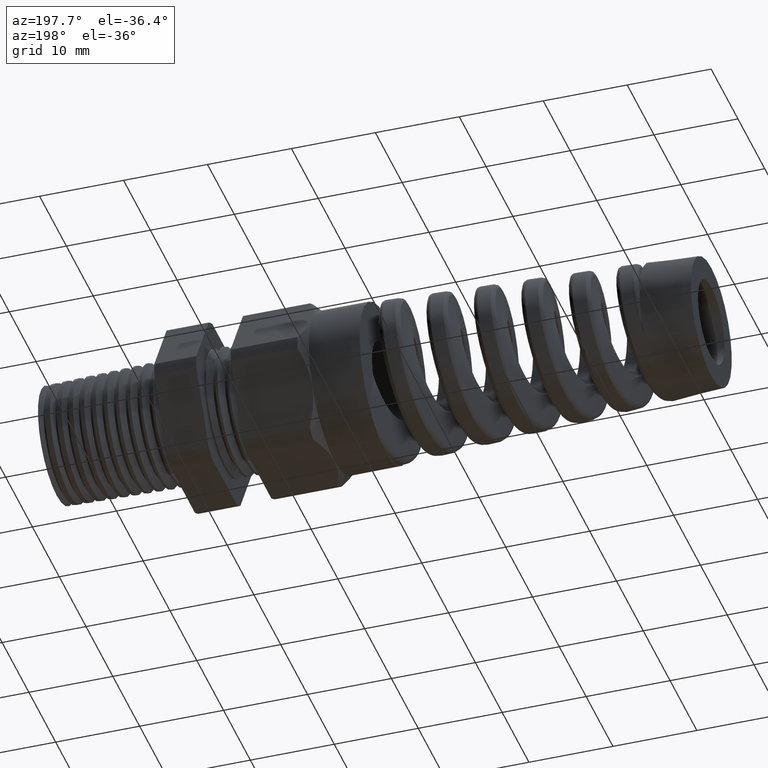
[diagram: clean part render]
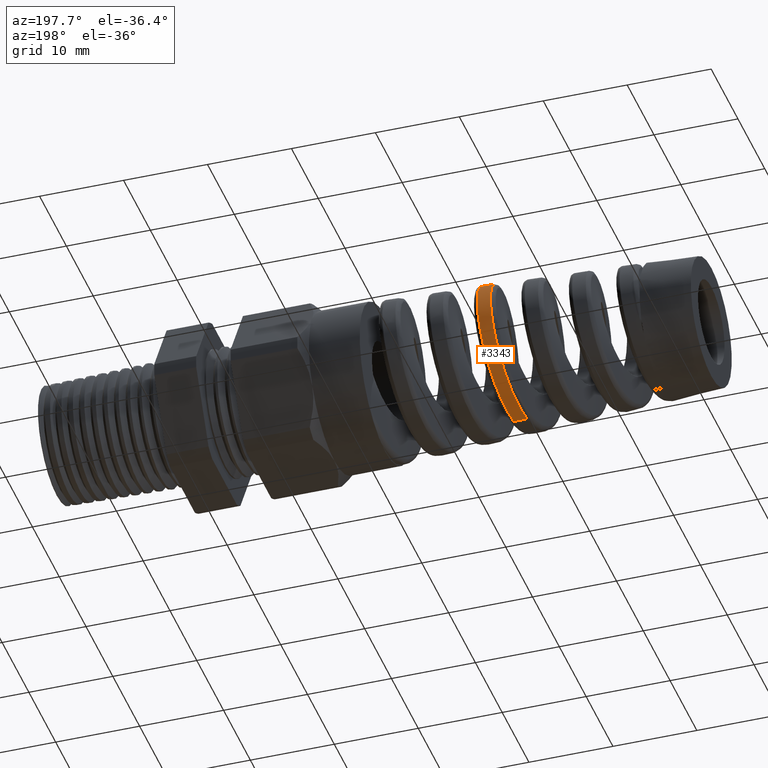
[diagram: same view with one face highlighted and labeled with its STEP entity id]
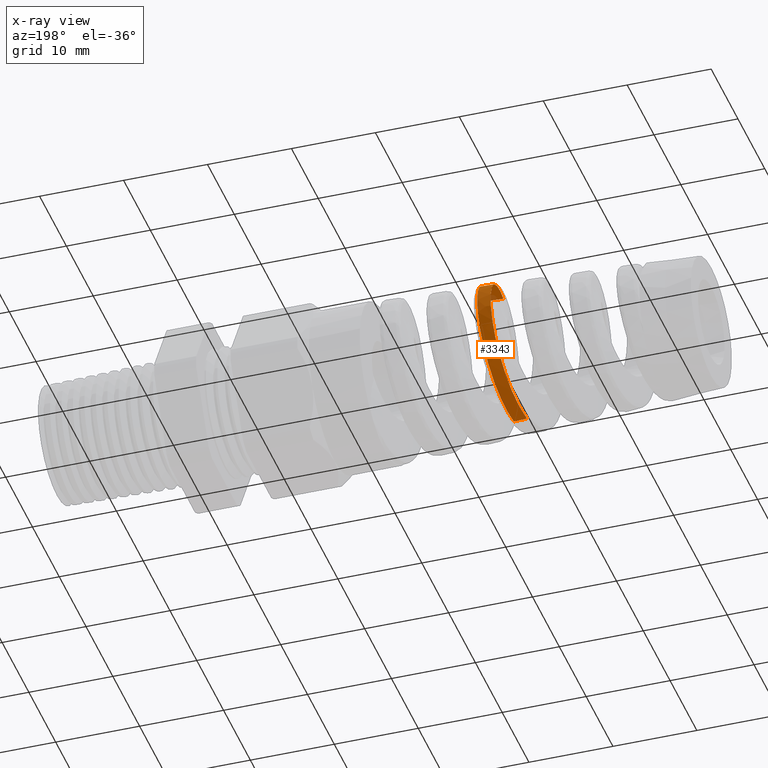
[diagram: x-ray of the same camera — body ghosted, the highlighted face saturated]
A machine part, auxiliary view. The second image highlights one B-rep face of the part: STEP entity #3343.
The next image is the same camera in x-ray: the body ghosted, the highlighted face saturated — about 1% of this face is hidden behind the body in this view.
In plain terms, the highlighted conical surface has half-angle 2.5 deg.
Its self-contained STEP definition (entity closure, byte-faithful):
#3343 = ADVANCED_FACE ( 'NONE', ( #7266 ), #7265, .T. ) ;
#3344 = EDGE_LOOP ( 'NONE', ( #3345, #3349, #3352, #3355 ) ) ;
#3345 = ORIENTED_EDGE ( 'NONE', *, *, #3346, .T. ) ;
#3346 = EDGE_CURVE ( 'NONE', #3347, #3348, #7347, .T. ) ;
#3347 = VERTEX_POINT ( 'NONE', #7348 ) ;
#3348 = VERTEX_POINT ( 'NONE', #7346 ) ;
#3349 = ORIENTED_EDGE ( 'NONE', *, *, #3350, .T. ) ;
#3350 = EDGE_CURVE ( 'NONE', #3348, #3351, #7377, .T. ) ;
#3351 = VERTEX_POINT ( 'NONE', #7373 ) ;
#3352 = ORIENTED_EDGE ( 'NONE', *, *, #3353, .T. ) ;
#3353 = EDGE_CURVE ( 'NONE', #3351, #3354, #7371, .T. ) ;
#3354 = VERTEX_POINT ( 'NONE', #7372 ) ;
#3355 = ORIENTED_EDGE ( 'NONE', *, *, #3356, .F. ) ;
#3356 = EDGE_CURVE ( 'NONE', #3347, #3354, #7397, .T. ) ;
#7261 = DIRECTION ( 'NONE',  ( 0.0000000000000000000, 0.0000000000000000000, -1.000000000000000000 ) ) ;
#7262 = DIRECTION ( 'NONE',  ( 1.000000000000000000, 0.0000000000000000000, 0.0000000000000000000 ) ) ;
#7263 = CARTESIAN_POINT ( 'NONE',  ( -1.179999999999999900, 0.0000000000000000000, 0.0000000000000000000 ) ) ;
#7264 = AXIS2_PLACEMENT_3D ( 'NONE', #7263, #7262, #7261 ) ;
#7265 = CONICAL_SURFACE ( 'NONE', #7264, 0.3750000000000001100, 0.04363323129985857000 ) ;
#7266 = FACE_OUTER_BOUND ( 'NONE', #3344, .T. ) ;
#7305 = CARTESIAN_POINT ( 'NONE',  ( -1.827687564551970800, 0.1214486470294869100, 0.3249493485360627200 ) ) ;
#7306 = CARTESIAN_POINT ( 'NONE',  ( -1.831101030711354700, 0.1525570680904503900, 0.3119989481846804400 ) ) ;
#7307 = CARTESIAN_POINT ( 'NONE',  ( -1.833373331290053300, 0.1724677927152319100, 0.3013576234932159900 ) ) ;
#7308 = CARTESIAN_POINT ( 'NONE',  ( -1.837975351572791000, 0.2102947103224993000, 0.2760407565394415500 ) ) ;
#7309 = CARTESIAN_POINT ( 'NONE',  ( -1.840240280539596500, 0.2276718497308685100, 0.2617372852602926100 ) ) ;
#7310 = CARTESIAN_POINT ( 'NONE',  ( -1.843655049946313600, 0.2515118134981942900, 0.2379091934225207000 ) ) ;
#7312 = CARTESIAN_POINT ( 'NONE',  ( -1.844796054865243300, 0.2590848550849244000, 0.2295681592868752700 ) ) ;
#7313 = CARTESIAN_POINT ( 'NONE',  ( -1.847094426467585300, 0.2734648333301542000, 0.2120708855063488900 ) ) ;
#7314 = CARTESIAN_POINT ( 'NONE',  ( -1.848253370673866000, 0.2802771985341725400, 0.2028994516073364400 ) ) ;
#7315 = CARTESIAN_POINT ( 'NONE',  ( -1.851723284744896800, 0.2992612081490698700, 0.1745004881278707500 ) ) ;
#7316 = CARTESIAN_POINT ( 'NONE',  ( -1.854005906880288300, 0.3098979422657736100, 0.1545574612076665300 ) ) ;
#7317 = CARTESIAN_POINT ( 'NONE',  ( -1.857421890408866600, 0.3228106944300122600, 0.1234363254572694300 ) ) ;
#7318 = CARTESIAN_POINT ( 'NONE',  ( -1.858561032802658700, 0.3266127770045786900, 0.1128472534410810300 ) ) ;
#7319 = CARTESIAN_POINT ( 'NONE',  ( -1.860852468233827200, 0.3331937804209875700, 0.09123166554696851600 ) ) ;
#7320 = CARTESIAN_POINT ( 'NONE',  ( -1.862011020272193300, 0.3359820725241705600, 0.08014404070699594800 ) ) ;
#7321 = CARTESIAN_POINT ( 'NONE',  ( -1.865461139393055800, 0.3426301094649774100, 0.04682363882691585600 ) ) ;
#7322 = CARTESIAN_POINT ( 'NONE',  ( -1.867736566130631500, 0.3448398416275915700, 0.02445965257940125500 ) ) ;
#7323 = CARTESIAN_POINT ( 'NONE',  ( -1.872321086450566200, 0.3448944893746447900, -0.02055528281098149500 ) ) ;
#7324 = CARTESIAN_POINT ( 'NONE',  ( -1.874648629822692800, 0.3426671327987356200, -0.04341366569620196100 ) ) ;
#7325 = CARTESIAN_POINT ( 'NONE',  ( -1.879229126862817000, 0.3339054975418071500, -0.08760598318179614600 ) ) ;
#7326 = CARTESIAN_POINT ( 'NONE',  ( -1.881501143287598100, 0.3274107376256192300, -0.1091136729633686700 ) ) ;
#7327 = CARTESIAN_POINT ( 'NONE',  ( -1.884954516839847400, 0.3144570495095722600, -0.1404734410259572100 ) ) ;
#7328 = CARTESIAN_POINT ( 'NONE',  ( -1.886118241355734000, 0.3095728582487191600, -0.1508168650275098800 ) ) ;
#7329 = CARTESIAN_POINT ( 'NONE',  ( -1.888424709543584400, 0.2989131100221272300, -0.1707709767061976200 ) ) ;
#7330 = CARTESIAN_POINT ( 'NONE',  ( -1.889572211680878900, 0.2931239389088594600, -0.1804269503786215000 ) ) ;
#7331 = CARTESIAN_POINT ( 'NONE',  ( -1.893012913645169400, 0.2744073090700292500, -0.2084498584401542600 ) ) ;
#7332 = CARTESIAN_POINT ( 'NONE',  ( -1.895306642373170100, 0.2601170683586032700, -0.2259080539677593100 ) ) ;
#7333 = CARTESIAN_POINT ( 'NONE',  ( -1.899948849107908600, 0.2279142029332521200, -0.2580913460702291000 ) ) ;
#7334 = CARTESIAN_POINT ( 'NONE',  ( -1.902230925740890700, 0.2104892299249269700, -0.2723392576612455000 ) ) ;
#7335 = CARTESIAN_POINT ( 'NONE',  ( -1.905670087045127300, 0.1824456557716097300, -0.2910431124501797800 ) ) ;
#7336 = CARTESIAN_POINT ( 'NONE',  ( -1.906819038853898400, 0.1727777792632556600, -0.2968298196513095000 ) ) ;
#7337 = CARTESIAN_POINT ( 'NONE',  ( -1.909133925250462200, 0.1527871916570535900, -0.3074846324104854600 ) ) ;
#7338 = CARTESIAN_POINT ( 'NONE',  ( -1.910301825061074200, 0.1424439963784759300, -0.3123535602563530800 ) ) ;
#7339 = CARTESIAN_POINT ( 'NONE',  ( -1.913770393503622500, 0.1111074358644400200, -0.3252522933667927900 ) ) ;
#7340 = CARTESIAN_POINT ( 'NONE',  ( -1.916061261318248800, 0.08959553017795476900, -0.3317167034339776300 ) ) ;
#7341 = CARTESIAN_POINT ( 'NONE',  ( -1.919519938589423000, 0.05640650884444767300, -0.3382259920577425100 ) ) ;
#7342 = CARTESIAN_POINT ( 'NONE',  ( -1.920682398302758800, 0.04513814232870454900, -0.3398649729921421900 ) ) ;
#7343 = CARTESIAN_POINT ( 'NONE',  ( -1.923004448165681200, 0.02252203997302164300, -0.3420072218672031700 ) ) ;
#7344 = CARTESIAN_POINT ( 'NONE',  ( -1.924156872631771300, 0.01124543741128634700, -0.3425094092690300600 ) ) ;
#7345 = CARTESIAN_POINT ( 'NONE',  ( -1.925307063856771300, 5.228962816624282900E-013, -0.3424591908356385800 ) ) ;
#7346 = CARTESIAN_POINT ( 'NONE',  ( -1.815145032800066900, -3.159549475374928200E-013, 0.3472689689842911600 ) ) ;
#7347 = B_SPLINE_CURVE_WITH_KNOTS ( 'NONE', 3,
 ( #7345, #7344, #7343, #7342, #7341, #7340, #7339, #7338, #7337, #7336, #7335, #7334, #7333, #7332, #7331, #7330, #7329, #7328, #7327, #7326, #7325, #7324, #7323, #7322, #7321, #7320, #7319, #7318, #7317, #7316, #7315, #7314, #7313, #7312, #7310, #7309, #7308, #7307, #7306, #7305, #7383, #7382, #7381, #7380, #7379, #7378 ),
 .UNSPECIFIED., .F., .F.,
 ( 4, 2, 2, 2, 2, 2, 2, 2, 2, 2, 2, 2, 2, 2, 2, 2, 2, 2, 2, 2, 2, 2, 4 ),
 ( 0.1518975122739483500, 0.1527701752890539600, 0.1536428383041595900, 0.1553881643343708300, 0.1562608273494764400, 0.1571334903645820700, 0.1588788163947933200, 0.1606241424250045600, 0.1614968054401101600, 0.1623694684552158000, 0.1641147944854270400, 0.1658601205156382800, 0.1676054465458495200, 0.1684781095609551300, 0.1693507725760607700, 0.1710960986062720100, 0.1719687616213776400, 0.1728414246364832500, 0.1745867506666944900, 0.1763320766969057600, 0.1772047397120113700, 0.1780774027271170000, 0.1798227287573282400 ),
 .UNSPECIFIED. ) ;
#7348 = CARTESIAN_POINT ( 'NONE',  ( -1.925307063856771300, 5.228962816624282900E-013, -0.3424591908356385800 ) ) ;
#7349 = CARTESIAN_POINT ( 'NONE',  ( -1.804061752662760300, 0.3452888892669745400, 0.04723618434179442700 ) ) ;
#7350 = CARTESIAN_POINT ( 'NONE',  ( -1.800606574375844600, 0.3385616096662337800, 0.08089465988138072600 ) ) ;
#7351 = CARTESIAN_POINT ( 'NONE',  ( -1.799451240903105400, 0.3357539868489871600, 0.09203578681384616500 ) ) ;
#7352 = CARTESIAN_POINT ( 'NONE',  ( -1.797164374419956100, 0.3291263705635104600, 0.1137833559593604300 ) ) ;
#7353 = CARTESIAN_POINT ( 'NONE',  ( -1.796027635168693900, 0.3252959006687909900, 0.1244461830025396600 ) ) ;
#7354 = CARTESIAN_POINT ( 'NONE',  ( -1.793755863985877900, 0.3166156127908531000, 0.1453543745914064900 ) ) ;
#7355 = CARTESIAN_POINT ( 'NONE',  ( -1.792620717936580700, 0.3117658084169234700, 0.1555997322716204700 ) ) ;
#7356 = CARTESIAN_POINT ( 'NONE',  ( -1.790339780771740300, 0.3010318896015088400, 0.1756655081953343000 ) ) ;
#7357 = CARTESIAN_POINT ( 'NONE',  ( -1.789187587136595200, 0.2951106818729281600, 0.1855381609527540800 ) ) ;
#7358 = CARTESIAN_POINT ( 'NONE',  ( -1.785751753444294600, 0.2760481887224872100, 0.2140288886305285700 ) ) ;
#7359 = CARTESIAN_POINT ( 'NONE',  ( -1.783490096854611000, 0.2616593130511015700, 0.2315299099845018700 ) ) ;
#7360 = CARTESIAN_POINT ( 'NONE',  ( -1.778937677578945800, 0.2296068206152912800, 0.2636115334331055600 ) ) ;
#7361 = CARTESIAN_POINT ( 'NONE',  ( -1.776624287068021100, 0.2117302740503016800, 0.2783040531523899300 ) ) ;
#7362 = CARTESIAN_POINT ( 'NONE',  ( -1.772074445675847700, 0.1739657058430288900, 0.3035744818312263200 ) ) ;
#7363 = CARTESIAN_POINT ( 'NONE',  ( -1.769822790704674400, 0.1540153582586779900, 0.3142799858025555100 ) ) ;
#7364 = CARTESIAN_POINT ( 'NONE',  ( -1.766408412570342100, 0.1224842417589154200, 0.3274224034210211400 ) ) ;
#7365 = CARTESIAN_POINT ( 'NONE',  ( -1.765257920074566800, 0.1116441464378284000, 0.3313294003324108200 ) ) ;
#7366 = CARTESIAN_POINT ( 'NONE',  ( -1.762974466919789500, 0.08981009410165326200, 0.3380050621659015900 ) ) ;
#7367 = CARTESIAN_POINT ( 'NONE',  ( -1.761839453143188500, 0.07879957852210457700, 0.3407880379502663000 ) ) ;
#7368 = CARTESIAN_POINT ( 'NONE',  ( -1.758438472381942000, 0.04549583114449774100, 0.3475120306730490900 ) ) ;
#7369 = CARTESIAN_POINT ( 'NONE',  ( -1.756176090355239900, 0.02293303899138319000, 0.3498436086137499700 ) ) ;
#7370 = CARTESIAN_POINT ( 'NONE',  ( -1.753884309869347300, 5.357863830350585500E-016, 0.3499436699107035300 ) ) ;
#7371 = B_SPLINE_CURVE_WITH_KNOTS ( 'NONE', 3,
 ( #7370, #7369, #7368, #7367, #7366, #7365, #7364, #7363, #7362, #7361, #7360, #7359, #7358, #7357, #7356, #7355, #7354, #7353, #7352, #7351, #7350, #7349, #7421, #7420, #7419, #7418, #7417, #7416, #7415, #7414, #7413, #7412, #7411, #7410, #7409, #7408, #7407, #7406, #7405, #7404, #7403, #7402, #7401, #7400, #7399, #7398 ),
 .UNSPECIFIED., .F., .F.,
 ( 4, 2, 2, 2, 2, 2, 2, 2, 2, 2, 2, 2, 2, 2, 2, 2, 2, 2, 2, 2, 2, 2, 4 ),
 ( 0.1302864388857865300, 0.1320343252325139300, 0.1329082684058776100, 0.1337822115792413100, 0.1355300979259687100, 0.1372779842726961100, 0.1390258706194234800, 0.1398998137927871800, 0.1407737569661508800, 0.1416477001395145800, 0.1425216433128782500, 0.1442695296596056600, 0.1451434728329693600, 0.1460174160063330300, 0.1477653023530604300, 0.1486392455264241300, 0.1495131886997878000, 0.1512610750465152000, 0.1530089613932426000, 0.1538829045666062800, 0.1547568477399699800, 0.1565047340866973800, 0.1582526204334247500 ),
 .UNSPECIFIED. ) ;
#7372 = CARTESIAN_POINT ( 'NONE',  ( -1.863722910110285700, 7.512270945896014100E-013, -0.3451480130564330000 ) ) ;
#7373 = CARTESIAN_POINT ( 'NONE',  ( -1.753884309869347300, 5.357863830350585500E-016, 0.3499436699107035300 ) ) ;
#7374 = DIRECTION ( 'NONE',  ( 0.9990482215818576900, 5.341834311772764100E-018, 0.04361938736533633300 ) ) ;
#7375 = VECTOR ( 'NONE', #7374, 39.37007874015748100 ) ;
#7376 = CARTESIAN_POINT ( 'NONE',  ( -1.179999999999999900, 4.592425496802576100E-017, 0.3750000000000001100 ) ) ;
#7377 = LINE ( 'NONE', #7376, #7375 ) ;
#7378 = CARTESIAN_POINT ( 'NONE',  ( -1.815145032800066900, -3.159549475374928200E-013, 0.3472689689842911600 ) ) ;
#7379 = CARTESIAN_POINT ( 'NONE',  ( -1.817415499187519800, 0.02251612679967530900, 0.3471698382809934000 ) ) ;
#7380 = CARTESIAN_POINT ( 'NONE',  ( -1.819671552815760800, 0.04487109547235465500, 0.3449019084089270400 ) ) ;
#7381 = CARTESIAN_POINT ( 'NONE',  ( -1.823103246468542200, 0.07815079451898131200, 0.3381937931784828000 ) ) ;
#7382 = CARTESIAN_POINT ( 'NONE',  ( -1.824259093716009000, 0.08923835043488498300, 0.3353861395585893700 ) ) ;
#7383 = CARTESIAN_POINT ( 'NONE',  ( -1.826548528973175100, 0.1108603387616356600, 0.3287673879524327700 ) ) ;
#7394 = DIRECTION ( 'NONE',  ( 0.9990482215818576900, 0.0000000000000000000, -0.04361938736533633300 ) ) ;
#7395 = VECTOR ( 'NONE', #7394, 39.37007874015748100 ) ;
#7396 = CARTESIAN_POINT ( 'NONE',  ( -1.179999999999999900, 0.0000000000000000000, -0.3750000000000001100 ) ) ;
#7397 = LINE ( 'NONE', #7396, #7395 ) ;
#7398 = CARTESIAN_POINT ( 'NONE',  ( -1.863722910110285700, 7.512270945896014100E-013, -0.3451480130564330000 ) ) ;
#7399 = CARTESIAN_POINT ( 'NONE',  ( -1.861420897014223200, 0.02269013210791618100, -0.3452485211187454300 ) ) ;
#7400 = CARTESIAN_POINT ( 'NONE',  ( -1.859088840989614200, 0.04573743297805921800, -0.3430598639852164300 ) ) ;
#7401 = CARTESIAN_POINT ( 'NONE',  ( -1.854500874447271300, 0.09028123756059962300, -0.3343197257010848100 ) ) ;
#7402 = CARTESIAN_POINT ( 'NONE',  ( -1.852224976148781700, 0.1119713300513417600, -0.3278060660656456100 ) ) ;
#7403 = CARTESIAN_POINT ( 'NONE',  ( -1.848765517676666000, 0.1436138953599359900, -0.3147753820484952000 ) ) ;
#7404 = CARTESIAN_POINT ( 'NONE',  ( -1.847601004773885800, 0.1540420190612300200, -0.3098619024576283500 ) ) ;
#7405 = CARTESIAN_POINT ( 'NONE',  ( -1.845295473256270700, 0.1741483535798573100, -0.2991409891305584200 ) ) ;
#7406 = CARTESIAN_POINT ( 'NONE',  ( -1.844148710254810900, 0.1838807751186546400, -0.2933152487355386600 ) ) ;
#7407 = CARTESIAN_POINT ( 'NONE',  ( -1.840711963491474100, 0.2121332260389121000, -0.2744699781836257300 ) ) ;
#7408 = CARTESIAN_POINT ( 'NONE',  ( -1.838420520352760200, 0.2297750899904442700, -0.2600379218852990100 ) ) ;
#7409 = CARTESIAN_POINT ( 'NONE',  ( -1.833798687408079400, 0.2621902804314477600, -0.2276232710623992700 ) ) ;
#7410 = CARTESIAN_POINT ( 'NONE',  ( -1.831525954769273900, 0.2765534302942332400, -0.2100736748947691100 ) ) ;
#7411 = CARTESIAN_POINT ( 'NONE',  ( -1.828100466015912800, 0.2954245803013906800, -0.1818125980881552000 ) ) ;
#7412 = CARTESIAN_POINT ( 'NONE',  ( -1.826956045760092000, 0.3012661364974298400, -0.1720670978929867700 ) ) ;
#7413 = CARTESIAN_POINT ( 'NONE',  ( -1.824650685810985000, 0.3120280320493081200, -0.1519101473449613900 ) ) ;
#7414 = CARTESIAN_POINT ( 'NONE',  ( -1.823489951987285100, 0.3169397826909866600, -0.1414971891055331600 ) ) ;
#7415 = CARTESIAN_POINT ( 'NONE',  ( -1.820044579354644000, 0.3299653372660802400, -0.1099451620081509100 ) ) ;
#7416 = CARTESIAN_POINT ( 'NONE',  ( -1.817772811435171000, 0.3365126632190054100, -0.08827344697055650200 ) ) ;
#7417 = CARTESIAN_POINT ( 'NONE',  ( -1.814342606201937900, 0.3431386274949155800, -0.05481952751800243900 ) ) ;
#7418 = CARTESIAN_POINT ( 'NONE',  ( -1.813189100372739800, 0.3448157328043610600, -0.04345186818839505400 ) ) ;
#7419 = CARTESIAN_POINT ( 'NONE',  ( -1.810889603200742400, 0.3470276476460382200, -0.02067664876515696400 ) ) ;
#7420 = CARTESIAN_POINT ( 'NONE',  ( -1.809748276492684700, 0.3475644757477275300, -0.009316728195100676700 ) ) ;
#7421 = CARTESIAN_POINT ( 'NONE',  ( -1.806331090374174900, 0.3475164997281947600, 0.02468055091727991400 ) ) ;